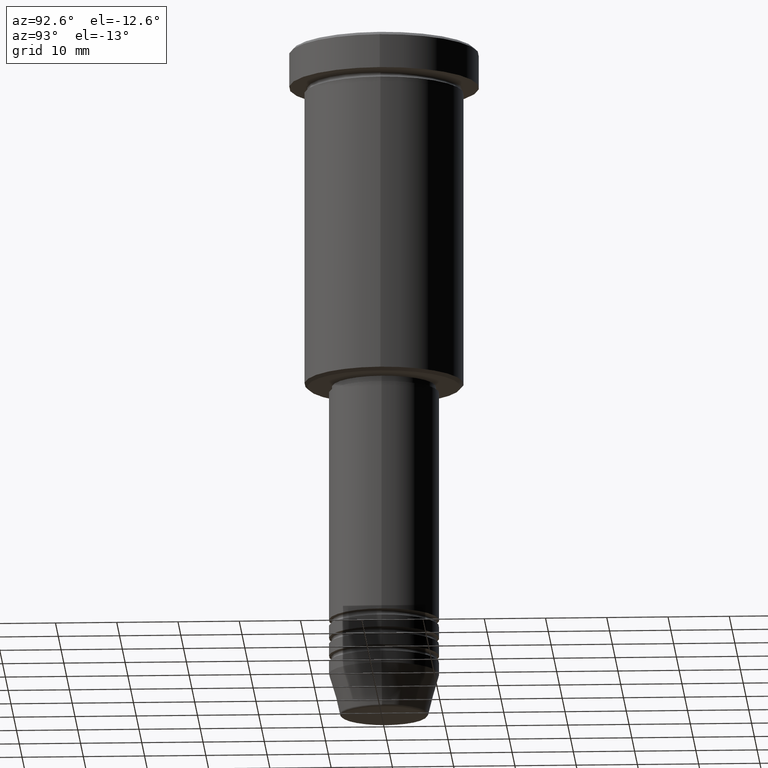
[diagram: clean part render]
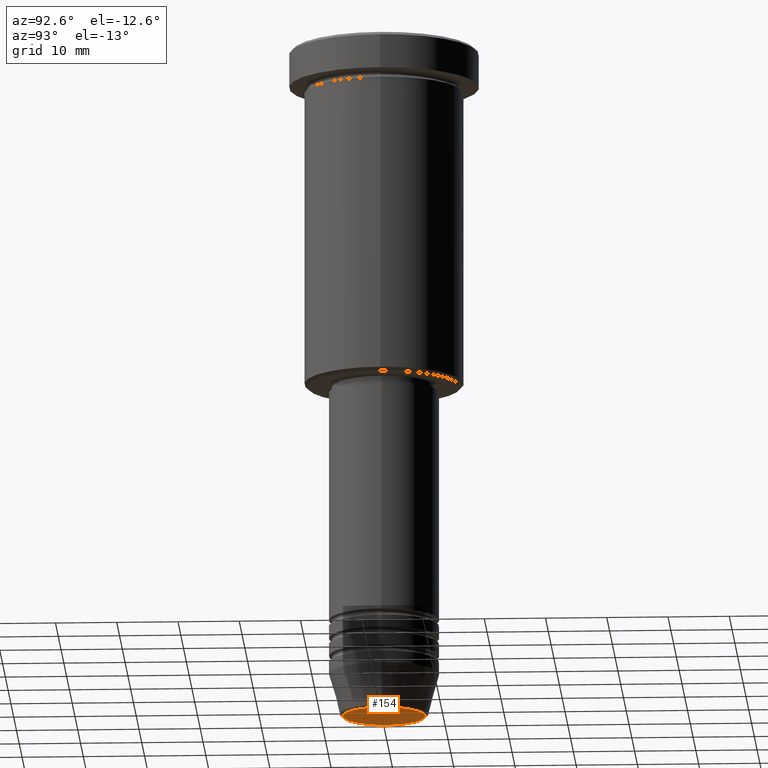
[diagram: same view with one face highlighted and labeled with its STEP entity id]
A machine part, auxiliary view. The second image highlights one B-rep face of the part: STEP entity #154.
In plain terms, the highlighted planar face has unit normal (0, -0, 1).
Its self-contained STEP definition (entity closure, byte-faithful):
#8 = AXIS2_PLACEMENT_3D ( 'NONE', #952, #582, #1042 ) ;
#36 = FACE_OUTER_BOUND ( 'NONE', #173, .T. ) ;
#65 = CIRCLE ( 'NONE', #503, 6.740692158992658278 ) ;
#154 = ADVANCED_FACE ( 'NONE', ( #36 ), #781, .F. ) ;
#173 = EDGE_LOOP ( 'NONE', ( #513, #1103 ) ) ;
#184 = CARTESIAN_POINT ( 'NONE',  ( 0.000000000000000000, 0.000000000000000000, -111.0000000000000000 ) ) ;
#222 = CARTESIAN_POINT ( 'NONE',  ( 6.740692158992658278, 0.000000000000000000, -111.0000000000000000 ) ) ;
#280 = EDGE_CURVE ( 'NONE', #685, #851, #867, .T. ) ;
#351 = AXIS2_PLACEMENT_3D ( 'NONE', #652, #818, #917 ) ;
#503 = AXIS2_PLACEMENT_3D ( 'NONE', #184, #642, #898 ) ;
#513 = ORIENTED_EDGE ( 'NONE', *, *, #770, .T. ) ;
#552 = CARTESIAN_POINT ( 'NONE',  ( -6.740692158992658278, 8.550696569392689626E-16, -111.0000000000000000 ) ) ;
#582 = DIRECTION ( 'NONE',  ( 0.000000000000000000, -0.000000000000000000, 1.000000000000000000 ) ) ;
#642 = DIRECTION ( 'NONE',  ( 0.000000000000000000, 0.000000000000000000, -1.000000000000000000 ) ) ;
#652 = CARTESIAN_POINT ( 'NONE',  ( 0.000000000000000000, 0.000000000000000000, -111.0000000000000000 ) ) ;
#685 = VERTEX_POINT ( 'NONE', #552 ) ;
#770 = EDGE_CURVE ( 'NONE', #851, #685, #65, .T. ) ;
#781 = PLANE ( 'NONE',  #8 ) ;
#818 = DIRECTION ( 'NONE',  ( 0.000000000000000000, 0.000000000000000000, -1.000000000000000000 ) ) ;
#851 = VERTEX_POINT ( 'NONE', #222 ) ;
#867 = CIRCLE ( 'NONE', #351, 6.740692158992658278 ) ;
#898 = DIRECTION ( 'NONE',  ( 1.000000000000000000, 0.000000000000000000, 0.000000000000000000 ) ) ;
#917 = DIRECTION ( 'NONE',  ( 1.000000000000000000, 0.000000000000000000, 0.000000000000000000 ) ) ;
#952 = CARTESIAN_POINT ( 'NONE',  ( 0.000000000000000000, 0.000000000000000000, -111.0000000000000000 ) ) ;
#1042 = DIRECTION ( 'NONE',  ( 1.000000000000000000, 0.000000000000000000, 0.000000000000000000 ) ) ;
#1103 = ORIENTED_EDGE ( 'NONE', *, *, #280, .T. ) ;